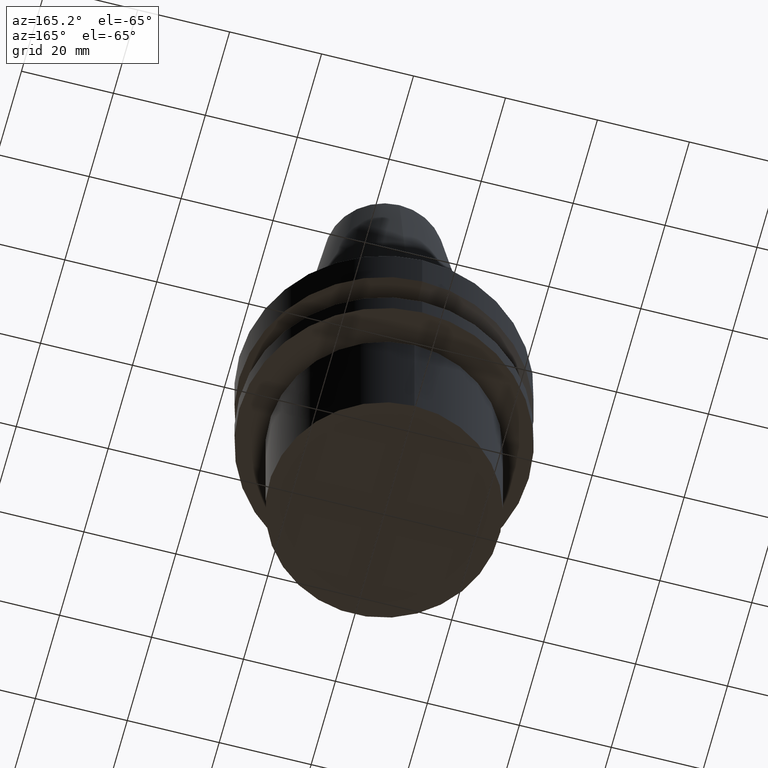
[diagram: clean part render]
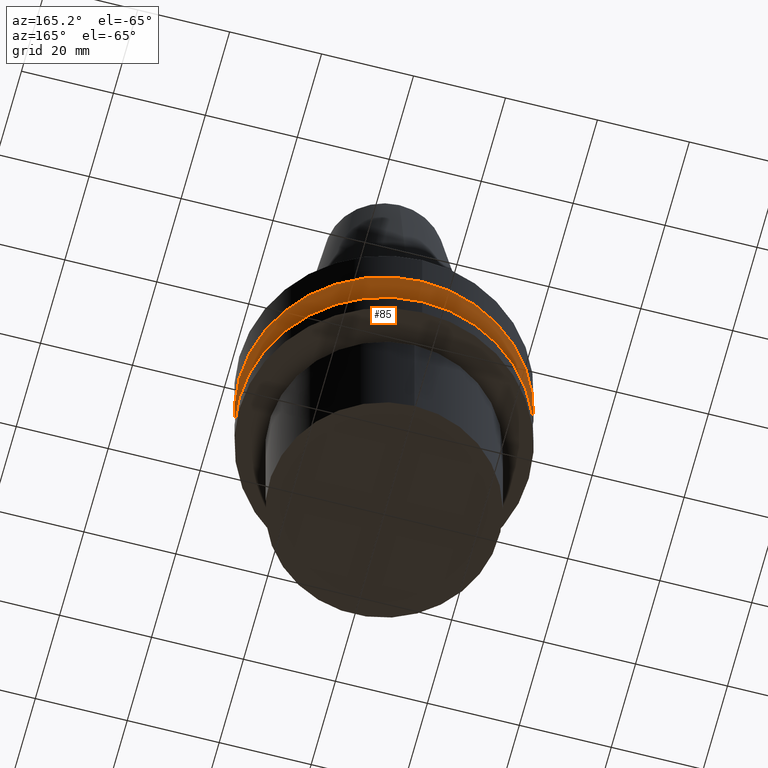
[diagram: same view with one face highlighted and labeled with its STEP entity id]
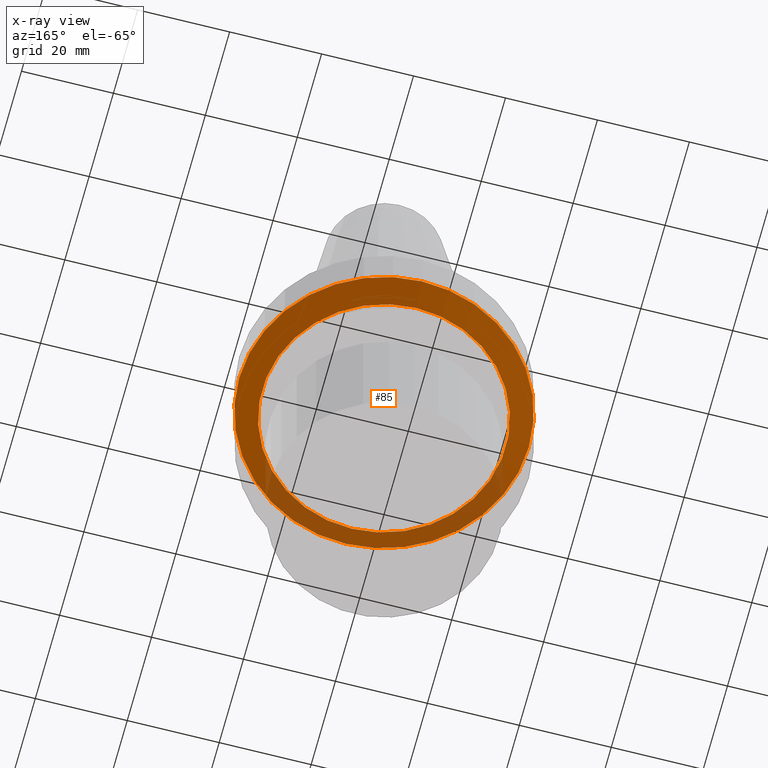
[diagram: x-ray of the same camera — body ghosted, the highlighted face saturated]
A machine part, auxiliary view. The second image highlights one B-rep face of the part: STEP entity #85.
The next image is the same camera in x-ray: the body ghosted, the highlighted face saturated — about 27% of this face is hidden behind the body in this view.
In plain terms, the highlighted conical surface has half-angle 60 deg.
Its self-contained STEP definition (entity closure, byte-faithful):
#85=ADVANCED_FACE('Unnamed[1]',(#204,#205),#206,.T.);
#92=EDGE_CURVE('Unnamed[1]',#216,#216,#217,.T.);
#118=EDGE_CURVE('Unnamed[1]',#254,#254,#255,.T.);
#204=FACE_BOUND('',#362,.T.);
#205=FACE_BOUND('',#363,.T.);
#206=CONICAL_SURFACE('',#364,28.9999999999999,1.04719755119657);
#216=VERTEX_POINT('',#377);
#217=CIRCLE('',#378,31.5000000000004);
#254=VERTEX_POINT('',#423);
#255=CIRCLE('',#424,26.4999999999994);
#362=EDGE_LOOP('',(#532));
#363=EDGE_LOOP('',(#533));
#364=AXIS2_PLACEMENT_3D('',#534,#535,#536);
#377=CARTESIAN_POINT('',(7.08182973902924E-016,31.5000000000004,-11.5655056526664));
#378=AXIS2_PLACEMENT_3D('',#546,#547,#548);
#423=CARTESIAN_POINT('',(8.8494551369045E-016,26.4999999999995,-14.4522569986152));
#424=AXIS2_PLACEMENT_3D('',#584,#585,#586);
#532=ORIENTED_EDGE('',*,*,#118,.F.);
#533=ORIENTED_EDGE('',*,*,#92,.T.);
#534=CARTESIAN_POINT('',(7.96564243796686E-016,1.71188641388657E-014,-13.0088813256407));
#535=DIRECTION('',(-6.12323399573677E-017,7.56206108338731E-016,1.0));
#536=DIRECTION('',(4.14771167728659E-032,1.0,-7.56206108338731E-016));
#546=CARTESIAN_POINT('',(7.08182973902922E-016,1.82103536393965E-014,-11.5655056526663));
#547=DIRECTION('',(6.12323399573677E-017,-7.56206108338727E-016,-1.0));
#548=DIRECTION('',(4.14771167728632E-032,1.0,-7.56206108338727E-016));
#584=CARTESIAN_POINT('',(8.84945513690449E-016,1.60273746383349E-014,-14.4522569986152));
#585=DIRECTION('',(6.12323399573677E-017,-7.56206108338735E-016,-1.0));
#586=DIRECTION('',(4.14771167728657E-032,1.0,-7.56206108338736E-016));